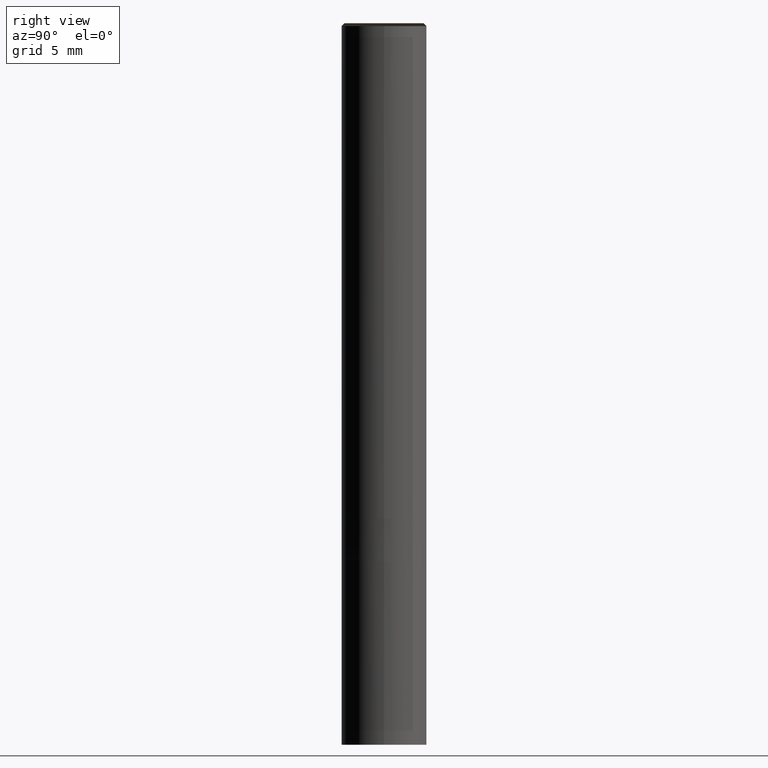
[diagram: clean part render]
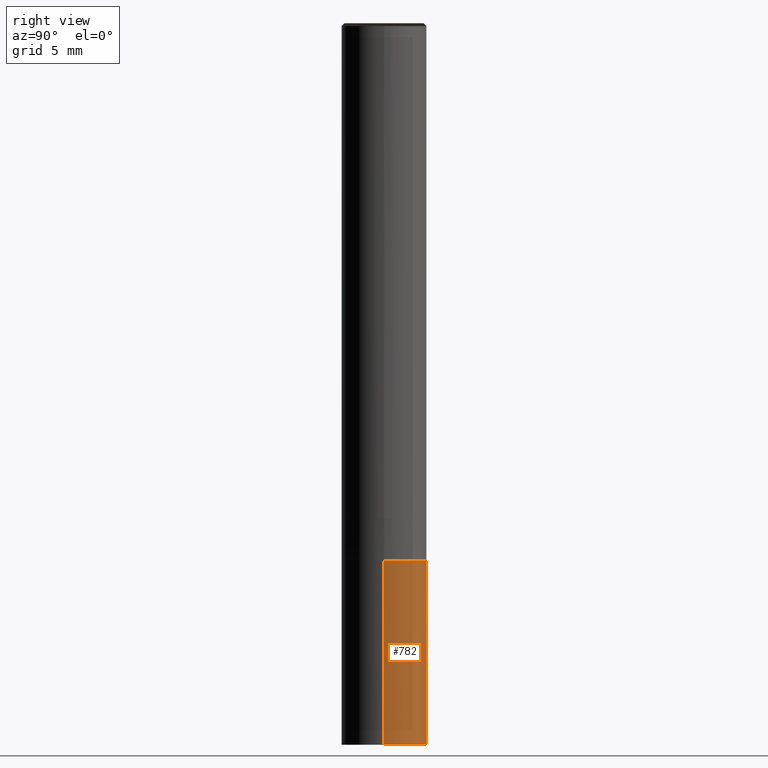
[diagram: same view with one face highlighted and labeled with its STEP entity id]
A machine part, right view. The second image highlights one B-rep face of the part: STEP entity #782.
In plain terms, the highlighted face is a freeform B-spline surface patch.
Its self-contained STEP definition (entity closure, byte-faithful):
#700=CARTESIAN_POINT('',(3.0,0.0,-16.0));
#701=CARTESIAN_POINT('',(3.0,3.0,-16.0));
#702=CARTESIAN_POINT('',(0.0,3.0,-16.0));
#703=CARTESIAN_POINT('',(-3.0,3.0,-16.0));
#704=CARTESIAN_POINT('',(-3.0,0.0,-16.0));
#705=CARTESIAN_POINT('',(3.0,0.0,-3.0));
#706=CARTESIAN_POINT('',(3.0,3.0,-3.0));
#707=CARTESIAN_POINT('',(0.0,3.0,-3.0));
#708=CARTESIAN_POINT('',(-3.0,3.0,-3.0));
#709=CARTESIAN_POINT('',(-3.0,0.0,-3.0));
#763=(
BOUNDED_SURFACE()
B_SPLINE_SURFACE(1,2,(
(#700,#701,#702,#703,#704),
(#705,#706,#707,#708,#709)
), .UNSPECIFIED.,.F.,.F.,.F.)
B_SPLINE_SURFACE_WITH_KNOTS((2,2),(3,2,3),(
0.0,1.0),(
0.0,0.5,1.0), .UNSPECIFIED.)
GEOMETRIC_REPRESENTATION_ITEM()
RATIONAL_B_SPLINE_SURFACE(((1.0,0.707106781187,1.0,0.707106781187,1.0),
(1.0,0.707106781187,1.0,0.707106781187,1.0)
))
REPRESENTATION_ITEM('')
SURFACE()
);
#764=(
BOUNDED_CURVE()
B_SPLINE_CURVE(2,(#704,#703,#702,#701,#700),.UNSPECIFIED.,.F.,.F.)
B_SPLINE_CURVE_WITH_KNOTS((3,2,3),
(0.0,0.5,1.0),.UNSPECIFIED.)
CURVE()
GEOMETRIC_REPRESENTATION_ITEM()
RATIONAL_B_SPLINE_CURVE((1.0,0.707106781187,1.0,0.707106781187,1.0))
REPRESENTATION_ITEM('')
);
#765=(
BOUNDED_CURVE()
B_SPLINE_CURVE(1,(#700,#705),.UNSPECIFIED.,.F.,.F.)
B_SPLINE_CURVE_WITH_KNOTS((2,2),
(0.0,1.0),.UNSPECIFIED.)
CURVE()
GEOMETRIC_REPRESENTATION_ITEM()
RATIONAL_B_SPLINE_CURVE((1.0,1.0))
REPRESENTATION_ITEM('')
);
#766=(
BOUNDED_CURVE()
B_SPLINE_CURVE(2,(#705,#706,#707,#708,#709),.UNSPECIFIED.,.F.,.F.)
B_SPLINE_CURVE_WITH_KNOTS((3,2,3),
(0.0,0.5,1.0),.UNSPECIFIED.)
CURVE()
GEOMETRIC_REPRESENTATION_ITEM()
RATIONAL_B_SPLINE_CURVE((1.0,0.707106781187,1.0,0.707106781187,1.0))
REPRESENTATION_ITEM('')
);
#767=(
BOUNDED_CURVE()
B_SPLINE_CURVE(1,(#709,#704),.UNSPECIFIED.,.F.,.F.)
B_SPLINE_CURVE_WITH_KNOTS((2,2),
(0.0,1.0),.UNSPECIFIED.)
CURVE()
GEOMETRIC_REPRESENTATION_ITEM()
RATIONAL_B_SPLINE_CURVE((1.0,1.0))
REPRESENTATION_ITEM('')
);
#768=VERTEX_POINT('',#700);
#769=VERTEX_POINT('',#704);
#770=VERTEX_POINT('',#705);
#771=VERTEX_POINT('',#709);
#772=EDGE_CURVE('',#769,#768,#764,.T.);
#773=EDGE_CURVE('',#768,#770,#765,.T.);
#774=EDGE_CURVE('',#770,#771,#766,.T.);
#775=EDGE_CURVE('',#771,#769,#767,.T.);
#776=ORIENTED_EDGE('',*,*,#772,.T.);
#777=ORIENTED_EDGE('',*,*,#773,.T.);
#778=ORIENTED_EDGE('',*,*,#774,.T.);
#779=ORIENTED_EDGE('',*,*,#775,.T.);
#780=EDGE_LOOP('',(#776,#777,#778,#779));
#781=FACE_OUTER_BOUND('',#780,.T.);
#782=ADVANCED_FACE('',(#781),#763,.T.);